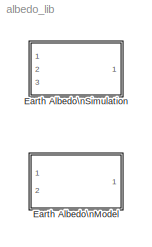
MODEL albedo_lib
KIND library
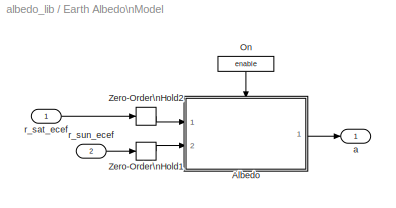
BLOCK [SubSystem] Earth Albedo\nModel
  MaskCallbackString = |||enable = strcmp(get_param(gcb,'enable'),'on');
  MaskDescription = Calculate Earth Albedo using static data from the EP/TOMS spacecraft.
  MaskDisplay = image(imread('private/albedoicon.png'));\nport_label('output', 1, 'Albedo');\nport_label('input', 1, 'Sat');\nport_label('input', 2, 'Sun');
  MaskEnableString = on,on,on,on
  MaskHelp = <b>Input</b><br>\nSat: Vector to satellite in ECEF [m]<br>\nSun: Vector to the Sun in ECEF [m]<p>\n<b>Parameters</b><br>\nReflectivity Data (EPR Struct): TOMS Reflectivity data [E.U].<br>\nReduction factor: Reduce data resolution by this factor.<br>\nSample Time (-1 for inherited): Sample Time [s]. The block cannot inherit continuous sample time.<br>\nEnable: Enable or disable albedo calculation<p...<+136ch>
  MaskIconFrame = on
  MaskIconOpaque = on
  MaskIconRotate = none
  MaskIconUnits = autoscale
  MaskInitialization = global sy;\nglobal sx;\nsy = round(180/redfac);\nsx = round(288/redfac);\n
  MaskPromptString = Reflectivity Data (EPR Struct):|Reduction factor:|Sample Time (-1 for inherited):|Enable:
  MaskStyleString = edit,edit,edit,checkbox
  MaskTabNameString = ,,,
  MaskToolTipString = on,on,on,on
  MaskTunableValueString = on,on,on,on
  MaskType = Earth Albedo Model
  MaskValueString = load('lib/space_environment_emulation/albedo/toolbox/epr_data/2003/ga030101-031231')|1|1|on
  MaskVarAliasString = ,,,
  MaskVariables = eprdata=@1;redfac=@2;Ts=@3;enable=@4;
  MaskVisibilityString = on,on,on,on
  MinAlgLoopOccurrences = off
  Ports = [2, 1]
  RTWSystemCode = Auto
  TreatAsAtomicUnit = on
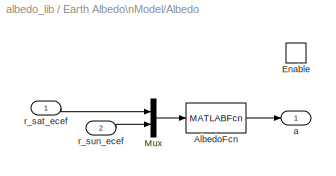
BLOCK [SubSystem] Earth Albedo\nModel/Albedo
  MinAlgLoopOccurrences = off
  Ports = [2, 1, 1]
  RTWSystemCode = Auto
  TreatAsAtomicUnit = off
BLOCK [MATLABFcn] Earth Albedo\nModel/Albedo/AlbedoFcn
  MATLABFcn = albedo_wrapper(u(1:3),u(4:6),eprdata,redfac)
  Output1D = off
  OutputDimensions = floor([180 288]./redfac)
  OutputSignalType = real
BLOCK [EnablePort] Earth Albedo\nModel/Albedo/Enable
  Ports = []
  StatesWhenEnabling = reset
BLOCK [Mux] Earth Albedo\nModel/Albedo/Mux
  DisplayOption = bar
  Inputs = 2
  Ports = [2, 1]
BLOCK [Outport] Earth Albedo\nModel/Albedo/a
  BusOutputAsStruct = off
  IconDisplay = Port number
  InitialOutput = 0
  OutputWhenDisabled = reset
BLOCK [Inport] Earth Albedo\nModel/Albedo/r_sat_ecef
  IconDisplay = Port number
  LatchInput = off
  Port = 1
  PortDimensions = 3
BLOCK [Inport] Earth Albedo\nModel/Albedo/r_sun_ecef
  IconDisplay = Port number
  LatchInput = off
  Port = 2
  PortDimensions = 3
BLOCK [Constant] Earth Albedo\nModel/On
  Value = enable
BLOCK [ZeroOrderHold] Earth Albedo\nModel/Zero-Order\nHold1
  SampleTime = Ts
BLOCK [ZeroOrderHold] Earth Albedo\nModel/Zero-Order\nHold2
  SampleTime = Ts
BLOCK [Outport] Earth Albedo\nModel/a
  BusOutputAsStruct = off
  IconDisplay = Port number
BLOCK [Inport] Earth Albedo\nModel/r_sat_ecef
  IconDisplay = Port number
  LatchInput = off
  Port = 1
  SampleTime = Ts
BLOCK [Inport] Earth Albedo\nModel/r_sun_ecef
  IconDisplay = Port number
  LatchInput = off
  Port = 2
  SampleTime = Ts
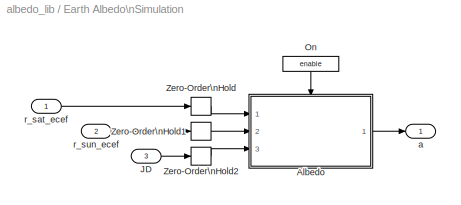
BLOCK [SubSystem] Earth Albedo\nSimulation
  MaskCallbackString = |||enable = strcmp(get_param(gcb,'enable'),'on');
  MaskDescription = Calculate Earth Albedo using daily reflectivity data from the EP/TOMS spacecraft.
  MaskDisplay = image(imread('private/albedoicon.png'));\nport_label('output', 1, 'Albedo');\nport_label('input', 1, 'Sat');\nport_label('input', 2, 'Sun');\nport_label('input', 3, 'Time');
  MaskEnableString = on,on,on,on
  MaskHelp = <b>Input</b><br>\nSat: Vector to satellite in ECEF [m]<br>\nSun: Vector to the Sun in ECEF [m]<br>\nTime: Time in Julian Date [days]<p>\n<b>Parameters</b><br>\nPath to reflectivity data directories: System path to TOMS Earth Reflectivity Data. The data must be structured in i directiry for each year. The path is searched for the newest data, determined from the Time input.<br>\nReduction factor: R...<+328ch>
  MaskIconFrame = on
  MaskIconOpaque = on
  MaskIconRotate = none
  MaskIconUnits = autoscale
  MaskInitialization = global sy;\nglobal sx;\nsy = round(180/redfac);\nsx = round(288/redfac);\n
  MaskPromptString = Path to reflectivity data directories:|Reduction factor:|Sample Time (-1 for inherited):|Enable:
  MaskStyleString = edit,edit,edit,checkbox
  MaskTabNameString = ,,,
  MaskToolTipString = on,on,on,on
  MaskTunableValueString = off,on,on,on
  MaskType = Earth Albedo Simuation
  MaskValueString = [albedo_path filesep 'epr_data']|4|Ts|off
  MaskVarAliasString = ,,,
  MaskVariables = pathstr=@1;redfac=@2;Ts=@3;enable=@4;
  MaskVisibilityString = on,on,on,on
  MinAlgLoopOccurrences = off
  Ports = [3, 1]
  RTWSystemCode = Auto
  TreatAsAtomicUnit = on
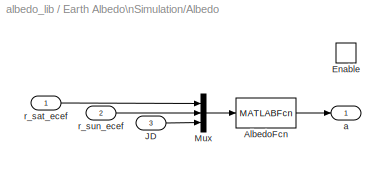
BLOCK [SubSystem] Earth Albedo\nSimulation/Albedo
  MinAlgLoopOccurrences = off
  Ports = [3, 1, 1]
  RTWSystemCode = Auto
  TreatAsAtomicUnit = off
BLOCK [MATLABFcn] Earth Albedo\nSimulation/Albedo/AlbedoFcn
  MATLABFcn = albedo_wrapper(u(1:3),u(4:6),u(7),redfac,pathstr)
  Output1D = off
  OutputDimensions = floor([180 288]./redfac)
  OutputSignalType = real
BLOCK [EnablePort] Earth Albedo\nSimulation/Albedo/Enable
  Ports = []
  StatesWhenEnabling = reset
BLOCK [Inport] Earth Albedo\nSimulation/Albedo/JD
  IconDisplay = Port number
  LatchInput = off
  Port = 3
  PortDimensions = 1
BLOCK [Mux] Earth Albedo\nSimulation/Albedo/Mux
  DisplayOption = bar
  Inputs = 3
  Ports = [3, 1]
BLOCK [Outport] Earth Albedo\nSimulation/Albedo/a
  BusOutputAsStruct = off
  IconDisplay = Port number
  InitialOutput = 0
  OutputWhenDisabled = reset
BLOCK [Inport] Earth Albedo\nSimulation/Albedo/r_sat_ecef
  IconDisplay = Port number
  LatchInput = off
  Port = 1
  PortDimensions = 3
BLOCK [Inport] Earth Albedo\nSimulation/Albedo/r_sun_ecef
  IconDisplay = Port number
  LatchInput = off
  Port = 2
  PortDimensions = 3
BLOCK [Inport] Earth Albedo\nSimulation/JD
  IconDisplay = Port number
  LatchInput = off
  Port = 3
  PortDimensions = 1
  SampleTime = Ts
BLOCK [Constant] Earth Albedo\nSimulation/On
  Value = enable
BLOCK [ZeroOrderHold] Earth Albedo\nSimulation/Zero-Order\nHold
  SampleTime = Ts
BLOCK [ZeroOrderHold] Earth Albedo\nSimulation/Zero-Order\nHold1
  SampleTime = Ts
BLOCK [ZeroOrderHold] Earth Albedo\nSimulation/Zero-Order\nHold2
  SampleTime = Ts
BLOCK [Outport] Earth Albedo\nSimulation/a
  BusOutputAsStruct = off
  IconDisplay = Port number
BLOCK [Inport] Earth Albedo\nSimulation/r_sat_ecef
  IconDisplay = Port number
  LatchInput = off
  Port = 1
  PortDimensions = 3
  SampleTime = Ts
  SignalType = real
BLOCK [Inport] Earth Albedo\nSimulation/r_sun_ecef
  IconDisplay = Port number
  LatchInput = off
  Port = 2
  PortDimensions = 3
  SampleTime = Ts
  SignalType = real
LINE Earth Albedo\nModel/Albedo/AlbedoFcn:1 -> Earth Albedo\nModel/Albedo/a:1
LINE Earth Albedo\nModel/Albedo/Mux:1 -> Earth Albedo\nModel/Albedo/AlbedoFcn:1
LINE Earth Albedo\nModel/Albedo/r_sat_ecef:1 -> Earth Albedo\nModel/Albedo/Mux:1
LINE Earth Albedo\nModel/Albedo/r_sun_ecef:1 -> Earth Albedo\nModel/Albedo/Mux:2
LINE Earth Albedo\nModel/Albedo:1 -> Earth Albedo\nModel/a:1
LINE Earth Albedo\nModel/On:1 -> Earth Albedo\nModel/Albedo:enable
LINE Earth Albedo\nModel/Zero-Order\nHold1:1 -> Earth Albedo\nModel/Albedo:2
LINE Earth Albedo\nModel/Zero-Order\nHold2:1 -> Earth Albedo\nModel/Albedo:1
LINE Earth Albedo\nModel/r_sat_ecef:1 -> Earth Albedo\nModel/Zero-Order\nHold2:1
LINE Earth Albedo\nModel/r_sun_ecef:1 -> Earth Albedo\nModel/Zero-Order\nHold1:1
LINE Earth Albedo\nSimulation/Albedo/AlbedoFcn:1 -> Earth Albedo\nSimulation/Albedo/a:1
LINE Earth Albedo\nSimulation/Albedo/JD:1 -> Earth Albedo\nSimulation/Albedo/Mux:3
LINE Earth Albedo\nSimulation/Albedo/Mux:1 -> Earth Albedo\nSimulation/Albedo/AlbedoFcn:1
LINE Earth Albedo\nSimulation/Albedo/r_sat_ecef:1 -> Earth Albedo\nSimulation/Albedo/Mux:1
LINE Earth Albedo\nSimulation/Albedo/r_sun_ecef:1 -> Earth Albedo\nSimulation/Albedo/Mux:2
LINE Earth Albedo\nSimulation/Albedo:1 -> Earth Albedo\nSimulation/a:1
LINE Earth Albedo\nSimulation/JD:1 -> Earth Albedo\nSimulation/Zero-Order\nHold2:1
LINE Earth Albedo\nSimulation/On:1 -> Earth Albedo\nSimulation/Albedo:enable
LINE Earth Albedo\nSimulation/Zero-Order\nHold1:1 -> Earth Albedo\nSimulation/Albedo:2
LINE Earth Albedo\nSimulation/Zero-Order\nHold2:1 -> Earth Albedo\nSimulation/Albedo:3
LINE Earth Albedo\nSimulation/Zero-Order\nHold:1 -> Earth Albedo\nSimulation/Albedo:1
LINE Earth Albedo\nSimulation/r_sat_ecef:1 -> Earth Albedo\nSimulation/Zero-Order\nHold:1
LINE Earth Albedo\nSimulation/r_sun_ecef:1 -> Earth Albedo\nSimulation/Zero-Order\nHold1:1
